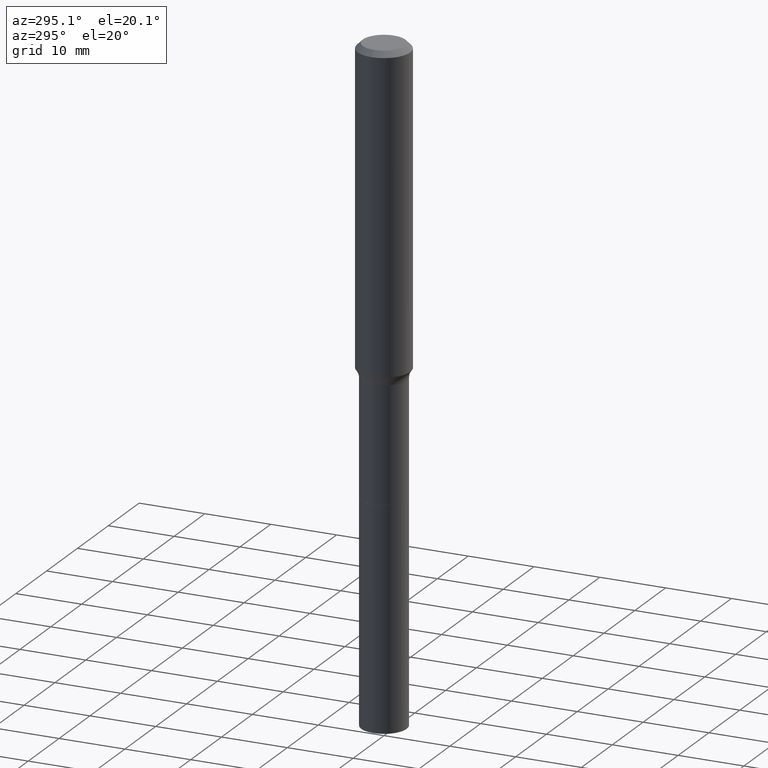
[diagram: clean part render]
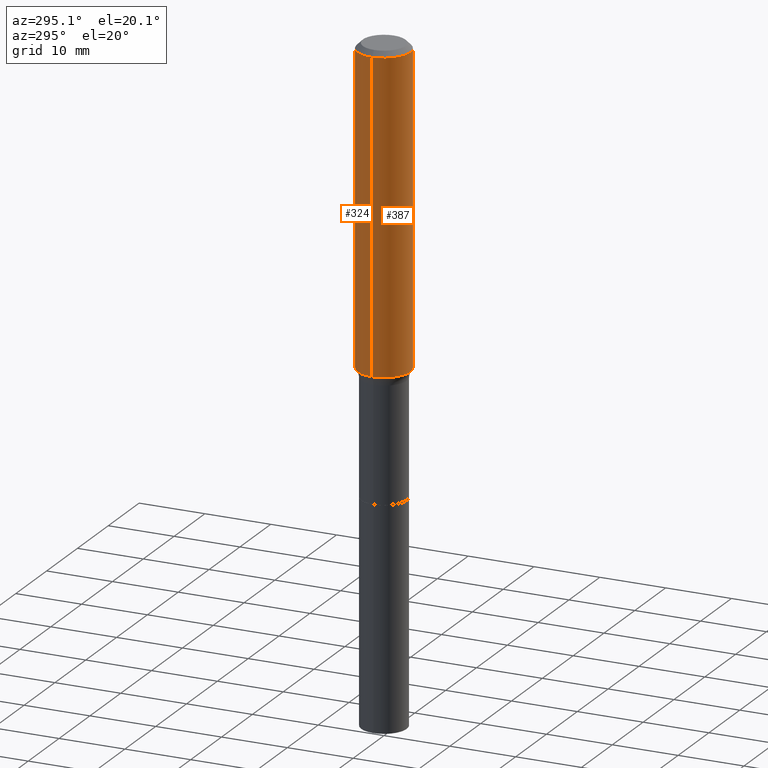
[diagram: same view with one multi-face feature highlighted, each face labeled with its STEP entity id]
A machine part, auxiliary view. The highlighted faces form ONE feature: a constant-radius fillet chain: 2 tangent blend faces with common blend radius 4.0005 mm. The faces share edges in the B-rep.
Their STEP definitions:
[1] entity #387 (Cylinder):
#20 = CARTESIAN_POINT ( 'NONE',  ( 0.1575000000000002232, -7.643796675283027405E-15, -1.874270379378770057 ) ) ;
#47 = AXIS2_PLACEMENT_3D ( 'NONE', #165, #439, #86 ) ;
#54 = CIRCLE ( 'NONE', #373, 0.1575000000000000011 ) ;
#55 = ORIENTED_EDGE ( 'NONE', *, *, #344, .T. ) ;
#60 = EDGE_LOOP ( 'NONE', ( #481, #278, #55, #237 ) ) ;
#79 = CARTESIAN_POINT ( 'NONE',  ( -0.1575000000000000844, 1.119104808822158392E-15, -7.747322767151481189E-30 ) ) ;
#86 = DIRECTION ( 'NONE',  ( 1.000000000000000000, -6.982962677686271444E-15, 0.000000000000000000 ) ) ;
#95 = FACE_OUTER_BOUND ( 'NONE', #60, .T. ) ;
#122 = EDGE_CURVE ( 'NONE', #388, #436, #54, .T. ) ;
#129 = DIRECTION ( 'NONE',  ( -2.445468806185136597E-29, 3.491481338843145583E-15, 1.000000000000000000 ) ) ;
#133 = CARTESIAN_POINT ( 'NONE',  ( -0.1575000000000002232, -5.424875244725278377E-15, -1.874270379378770057 ) ) ;
#144 = CYLINDRICAL_SURFACE ( 'NONE', #194, 0.1575000000000000844 ) ;
#147 = LINE ( 'NONE', #380, #154 ) ;
#154 = VECTOR ( 'NONE', #413, 39.37007874015748143 ) ;
#165 = CARTESIAN_POINT ( 'NONE',  ( 4.583469747127563786E-29, -6.543980053547438347E-15, -1.874270379378770057 ) ) ;
#184 = LINE ( 'NONE', #79, #462 ) ;
#191 = CARTESIAN_POINT ( 'NONE',  ( 0.1575000000000000011, -1.209798283909146938E-15, -0.03150000000000022921 ) ) ;
#194 = AXIS2_PLACEMENT_3D ( 'NONE', #342, #332, #265 ) ;
#218 = CARTESIAN_POINT ( 'NONE',  ( -0.1575000000000000011, -2.207876049038340116E-15, -0.03150000000000022921 ) ) ;
#237 = ORIENTED_EDGE ( 'NONE', *, *, #122, .F. ) ;
#264 = EDGE_CURVE ( 'NONE', #361, #314, #417, .T. ) ;
#265 = DIRECTION ( 'NONE',  ( 1.000000000000000000, -6.982962677686267499E-15, 4.876176775795936353E-29 ) ) ;
#278 = ORIENTED_EDGE ( 'NONE', *, *, #264, .T. ) ;
#314 = VERTEX_POINT ( 'NONE', #20 ) ;
#332 = DIRECTION ( 'NONE',  ( -2.445468806185136597E-29, 3.491481338843145583E-15, 1.000000000000000000 ) ) ;
#342 = CARTESIAN_POINT ( 'NONE',  ( 0.000000000000000000, 0.000000000000000000, 0.000000000000000000 ) ) ;
#344 = EDGE_CURVE ( 'NONE', #314, #436, #147, .T. ) ;
#361 = VERTEX_POINT ( 'NONE', #133 ) ;
#373 = AXIS2_PLACEMENT_3D ( 'NONE', #487, #129, #446 ) ;
#380 = CARTESIAN_POINT ( 'NONE',  ( 0.1575000000000000844, -1.099816621735587677E-15, 7.679978421878603638E-30 ) ) ;
#387 = ADVANCED_FACE ( 'NONE', ( #95 ), #144, .T. ) ;
#388 = VERTEX_POINT ( 'NONE', #218 ) ;
#413 = DIRECTION ( 'NONE',  ( -2.445468806185136877E-29, 3.491481338843145188E-15, 1.000000000000000000 ) ) ;
#417 = CIRCLE ( 'NONE', #47, 0.1575000000000002232 ) ;
#436 = VERTEX_POINT ( 'NONE', #191 ) ;
#439 = DIRECTION ( 'NONE',  ( -2.445468806185136597E-29, 3.491481338843145583E-15, 1.000000000000000000 ) ) ;
#446 = DIRECTION ( 'NONE',  ( 1.000000000000000000, -6.982962677686265922E-15, 0.000000000000000000 ) ) ;
#462 = VECTOR ( 'NONE', #466, 39.37007874015748143 ) ;
#466 = DIRECTION ( 'NONE',  ( -2.445468806185136877E-29, 3.491481338843145188E-15, 1.000000000000000000 ) ) ;
#481 = ORIENTED_EDGE ( 'NONE', *, *, #482, .F. ) ;
#482 = EDGE_CURVE ( 'NONE', #361, #388, #184, .T. ) ;
#487 = CARTESIAN_POINT ( 'NONE',  ( 7.703226739483235729E-31, -1.099816621735598771E-16, -0.03150000000000022921 ) ) ;
[2] entity #324 (Cylinder):
#14 = EDGE_LOOP ( 'NONE', ( #207, #245, #299, #488 ) ) ;
#20 = CARTESIAN_POINT ( 'NONE',  ( 0.1575000000000002232, -7.643796675283027405E-15, -1.874270379378770057 ) ) ;
#22 = CARTESIAN_POINT ( 'NONE',  ( 4.583469747127563786E-29, -6.543980053547438347E-15, -1.874270379378770057 ) ) ;
#31 = DIRECTION ( 'NONE',  ( -2.445468806185136597E-29, 3.491481338843145583E-15, 1.000000000000000000 ) ) ;
#79 = CARTESIAN_POINT ( 'NONE',  ( -0.1575000000000000844, 1.119104808822158392E-15, -7.747322767151481189E-30 ) ) ;
#98 = CARTESIAN_POINT ( 'NONE',  ( 7.703226739483235729E-31, -1.099816621735598771E-16, -0.03150000000000022921 ) ) ;
#113 = CIRCLE ( 'NONE', #398, 0.1575000000000000011 ) ;
#133 = CARTESIAN_POINT ( 'NONE',  ( -0.1575000000000002232, -5.424875244725278377E-15, -1.874270379378770057 ) ) ;
#147 = LINE ( 'NONE', #380, #154 ) ;
#154 = VECTOR ( 'NONE', #413, 39.37007874015748143 ) ;
#175 = CYLINDRICAL_SURFACE ( 'NONE', #310, 0.1575000000000000844 ) ;
#177 = DIRECTION ( 'NONE',  ( -2.445468806185136597E-29, 3.491481338843145583E-15, 1.000000000000000000 ) ) ;
#184 = LINE ( 'NONE', #79, #462 ) ;
#191 = CARTESIAN_POINT ( 'NONE',  ( 0.1575000000000000011, -1.209798283909146938E-15, -0.03150000000000022921 ) ) ;
#207 = ORIENTED_EDGE ( 'NONE', *, *, #232, .T. ) ;
#213 = DIRECTION ( 'NONE',  ( -2.445468806185136597E-29, 3.491481338843145583E-15, 1.000000000000000000 ) ) ;
#218 = CARTESIAN_POINT ( 'NONE',  ( -0.1575000000000000011, -2.207876049038340116E-15, -0.03150000000000022921 ) ) ;
#223 = DIRECTION ( 'NONE',  ( 1.000000000000000000, -6.982962677686265922E-15, 0.000000000000000000 ) ) ;
#232 = EDGE_CURVE ( 'NONE', #314, #361, #346, .T. ) ;
#245 = ORIENTED_EDGE ( 'NONE', *, *, #482, .T. ) ;
#258 = CARTESIAN_POINT ( 'NONE',  ( 0.000000000000000000, 0.000000000000000000, 0.000000000000000000 ) ) ;
#299 = ORIENTED_EDGE ( 'NONE', *, *, #315, .F. ) ;
#310 = AXIS2_PLACEMENT_3D ( 'NONE', #258, #213, #368 ) ;
#314 = VERTEX_POINT ( 'NONE', #20 ) ;
#315 = EDGE_CURVE ( 'NONE', #436, #388, #113, .T. ) ;
#324 = ADVANCED_FACE ( 'NONE', ( #463 ), #175, .T. ) ;
#334 = DIRECTION ( 'NONE',  ( 1.000000000000000000, -6.982962677686271444E-15, 0.000000000000000000 ) ) ;
#344 = EDGE_CURVE ( 'NONE', #314, #436, #147, .T. ) ;
#346 = CIRCLE ( 'NONE', #517, 0.1575000000000002232 ) ;
#361 = VERTEX_POINT ( 'NONE', #133 ) ;
#368 = DIRECTION ( 'NONE',  ( 1.000000000000000000, -6.982962677686267499E-15, 4.876176775795936353E-29 ) ) ;
#380 = CARTESIAN_POINT ( 'NONE',  ( 0.1575000000000000844, -1.099816621735587677E-15, 7.679978421878603638E-30 ) ) ;
#388 = VERTEX_POINT ( 'NONE', #218 ) ;
#398 = AXIS2_PLACEMENT_3D ( 'NONE', #98, #31, #223 ) ;
#413 = DIRECTION ( 'NONE',  ( -2.445468806185136877E-29, 3.491481338843145188E-15, 1.000000000000000000 ) ) ;
#436 = VERTEX_POINT ( 'NONE', #191 ) ;
#462 = VECTOR ( 'NONE', #466, 39.37007874015748143 ) ;
#463 = FACE_OUTER_BOUND ( 'NONE', #14, .T. ) ;
#466 = DIRECTION ( 'NONE',  ( -2.445468806185136877E-29, 3.491481338843145188E-15, 1.000000000000000000 ) ) ;
#482 = EDGE_CURVE ( 'NONE', #361, #388, #184, .T. ) ;
#488 = ORIENTED_EDGE ( 'NONE', *, *, #344, .F. ) ;
#517 = AXIS2_PLACEMENT_3D ( 'NONE', #22, #177, #334 ) ;